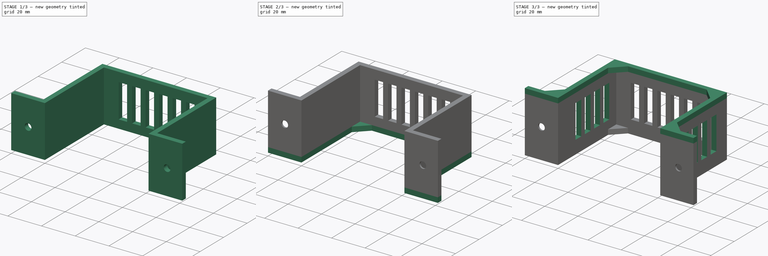
[diagram: build sequence overview — one tinted view per stage of 3, left to right]
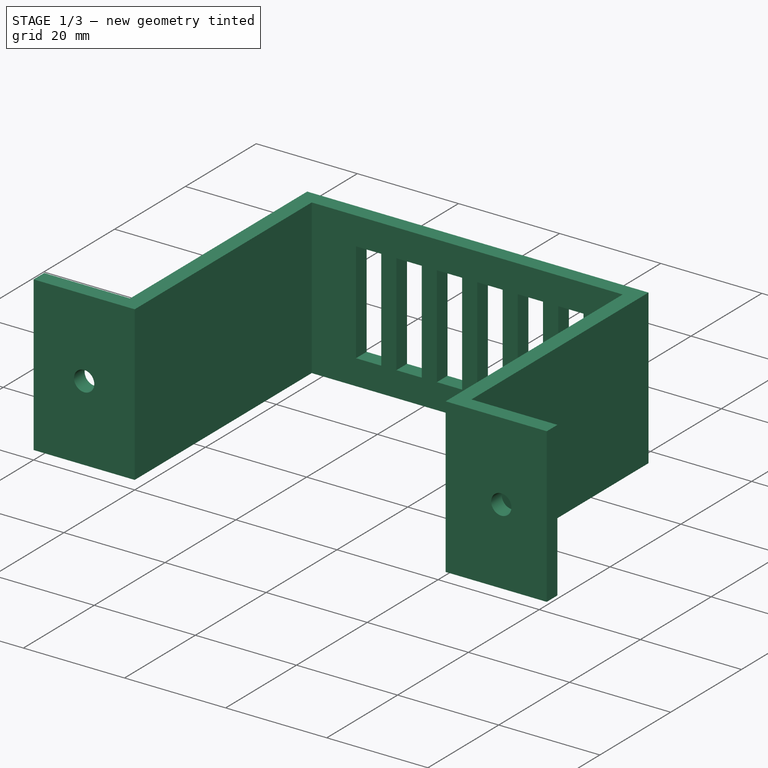
[diagram: stage 1 of 3 — iso view after this stage's code; geometry added in this stage tinted green]
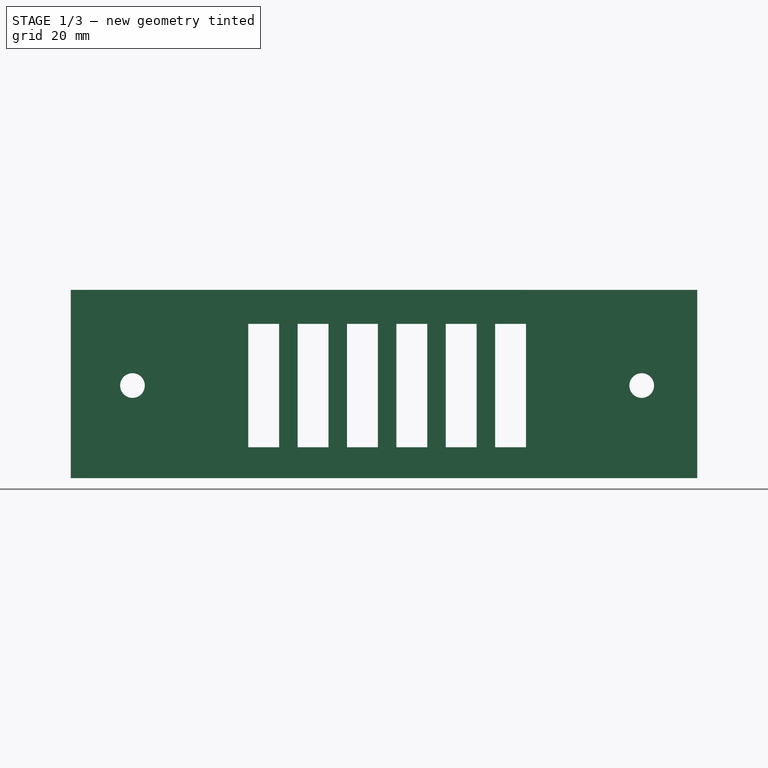
[diagram: stage 1 of 3 — front view after this stage's code; geometry added in this stage tinted green]
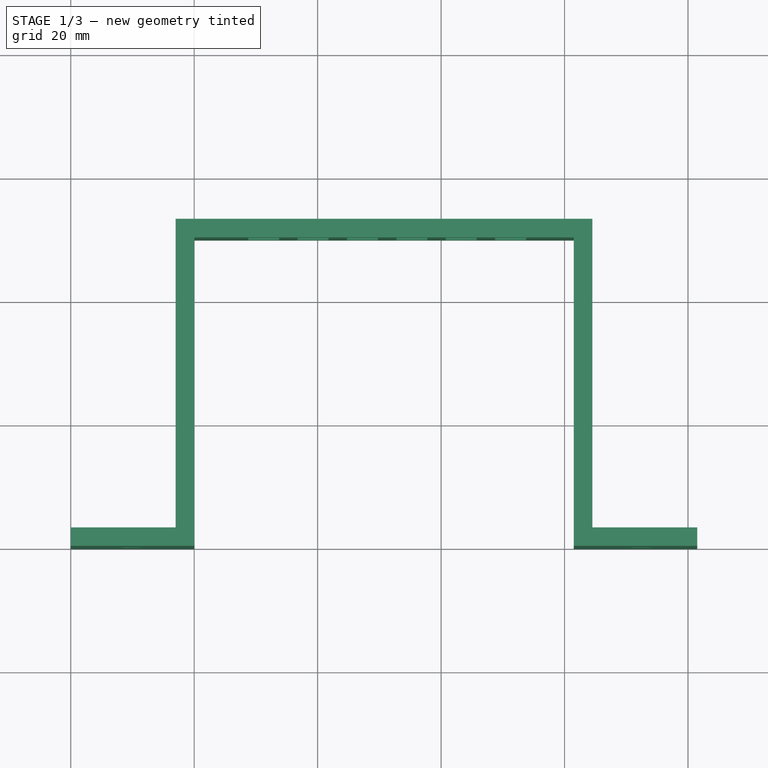
[diagram: stage 1 of 3 — top view after this stage's code; geometry added in this stage tinted green]
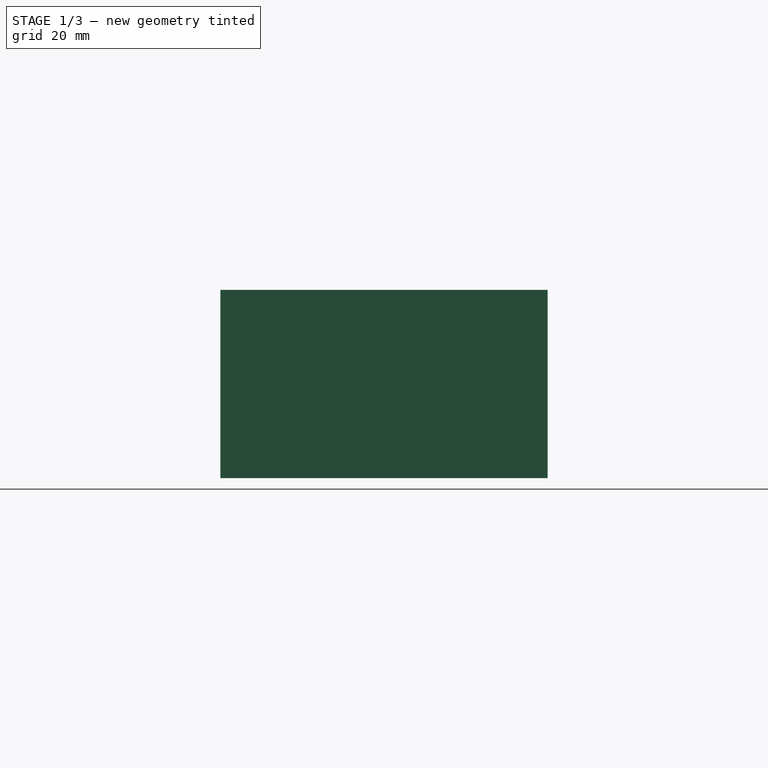
[diagram: stage 1 of 3 — right view after this stage's code; geometry added in this stage tinted green]
FCSTD DOCUMENT  (FreeCAD 1.0R39319 (Git))
Label: transfo_fixing
License: All rights reserved
LicenseURL: http://en.wikipedia.org/wiki/All_rights_reserved
objects: Sketcher::SketchObject×5, PartDesign::Pad×3, PartDesign::Pocket×2, PartDesign::Chamfer×1, PartDesign::Body×1
note: 29 computed .brp shape members not serialized (recipe doc carries the construction recipe); baked Part::Feature solids carry a one-line shape summary decoded from their .brp

FEATURE [Sketcher::SketchObject] Sketch
  ArcFitTolerance = 0
  AttachmentSupport = -> [XY_Plane]
  FullyConstrained = true
  MakeInternals = false
  MapMode = 5
  sketch-geometry (15):
    g0: LineSegment StartX=0 StartY=0 StartZ=0 EndX=20 EndY=0 EndZ=0
    g1: LineSegment StartX=20 StartY=0 StartZ=0 EndX=20 EndY=50 EndZ=0
    g2: LineSegment StartX=20 StartY=50 StartZ=0 EndX=81.5 EndY=50 EndZ=0
    g3: LineSegment StartX=81.5 StartY=50 StartZ=0 EndX=81.5 EndY=0 EndZ=0
    g4: LineSegment StartX=81.5 StartY=0 StartZ=0 EndX=101.5 EndY=0 EndZ=0
    g5: LineSegment StartX=101.5 StartY=0 StartZ=0 EndX=101.5 EndY=3 EndZ=0
    g6: LineSegment StartX=101.5 StartY=3 StartZ=0 EndX=84.5 EndY=3 EndZ=0
    g7: LineSegment StartX=84.5 StartY=3 StartZ=0 EndX=84.5 EndY=53 EndZ=0
    g8: LineSegment StartX=84.5 StartY=53 StartZ=0 EndX=17 EndY=53 EndZ=0
    g9: LineSegment StartX=17 StartY=53 StartZ=0 EndX=17 EndY=3 EndZ=0
    g10: LineSegment StartX=17 StartY=3 StartZ=0 EndX=0 EndY=3 EndZ=0
    g11: LineSegment StartX=0 StartY=3 StartZ=0 EndX=0 EndY=0 EndZ=0
    g12: LineSegment [constr] StartX=17 StartY=3 StartZ=0 EndX=17 EndY=0 EndZ=0
    g13: LineSegment [constr] StartX=17 StartY=3 StartZ=0 EndX=20 EndY=3 EndZ=0
    g14: LineSegment [constr] StartX=20 StartY=50 StartZ=0 EndX=20 EndY=53 EndZ=0
  constraints (44):
    c: Coincident(g-1,g0)
    c: Horizontal(g0)
    c: Coincident(g0,g1)
    c: Vertical(g1)
    c: Coincident(g1,g2)
    c: Horizontal(g2)
    c: Coincident(g2,g3)
    c: PointOnObject(g3,g-1)
    c: Vertical(g3)
    c: Coincident(g3,g4)
    c: Horizontal(g4)
    c: Coincident(g4,g5)
    c: Vertical(g5)
    c: Coincident(g5,g6)
    c: Horizontal(g6)
    c: Coincident(g6,g7)
    c: Vertical(g7)
    c: Coincident(g7,g8)
    c: Horizontal(g8)
    c: Coincident(g8,g9)
    c: Vertical(g9)
    c: Coincident(g9,g10)
    c: PointOnObject(g10,g-2)
    c: Horizontal(g10)
    c: Coincident(g10,g11)
    c: Coincident(g11,g0)
    c: DistanceX(g2,g2) = 61.5
    c: DistanceY(g1,g1) = 50
    c: DistanceX(g0,g0) = 20
    c: Equal(g0,g4)
    c: DistanceY(g11,g11) = 3
    c: Equal(g11,g5)
    c: Coincident(g12,g9)
    c: PointOnObject(g12,g0)
    c: Vertical(g12)
    c: Coincident(g13,g9)
    c: PointOnObject(g13,g1)
    c: Horizontal(g13)
    c: Equal(g11,g13)
    c: Equal(g10,g6)
    c: Coincident(g14,g1)
    c: PointOnObject(g14,g8)
    c: Vertical(g14)
    c: Equal(g14,g11)
FEATURE [PartDesign::Pad] Pad
  AllowMultiFace = false
  Direction = (0,0,1)
  Length = 30.5
  Length2 = 100
  Profile = -> Sketch
  Suppressed = false
  Type = 0
FEATURE [Sketcher::SketchObject] Sketch001
  ArcFitTolerance = 0
  AttachmentSupport = -> [Pad]
  FullyConstrained = true
  MakeInternals = false
  MapMode = 5
  Placement = pos=(0,0,0) rot=(1,0,0;1.5708rad)
  sketch-geometry (36):
    g0: Circle CenterX=10 CenterY=15 CenterZ=0 NormalX=0 NormalY=0 NormalZ=1 AngleXU=0 Radius=2
    g1: Circle CenterX=92.5 CenterY=15 CenterZ=0 NormalX=0 NormalY=0 NormalZ=1 AngleXU=0 Radius=2
    g2: LineSegment [constr] StartX=10 StartY=15 StartZ=0 EndX=92.5 EndY=15 EndZ=0
    g3: LineSegment StartX=28.75 StartY=25 StartZ=0 EndX=33.75 EndY=25 EndZ=0
    g4: LineSegment StartX=33.75 StartY=25 StartZ=0 EndX=33.75 EndY=5 EndZ=0
    g5: LineSegment StartX=33.75 StartY=5 StartZ=0 EndX=28.75 EndY=5 EndZ=0
    g6: LineSegment StartX=28.75 StartY=5 StartZ=0 EndX=28.75 EndY=25 EndZ=0
    g7: LineSegment StartX=73.75 StartY=25 StartZ=0 EndX=68.75 EndY=25 EndZ=0
    g8: LineSegment StartX=68.75 StartY=25 StartZ=0 EndX=68.75 EndY=5 EndZ=0
    g9: LineSegment StartX=68.75 StartY=5 StartZ=0 EndX=73.75 EndY=5 EndZ=0
    g10: LineSegment StartX=73.75 StartY=5 StartZ=0 EndX=73.75 EndY=25 EndZ=0
    g11: LineSegment StartX=65.75 StartY=5 StartZ=0 EndX=60.75 EndY=5 EndZ=0
    g12: LineSegment StartX=60.75 StartY=5 StartZ=0 EndX=60.75 EndY=25 EndZ=0
    g13: LineSegment StartX=60.75 StartY=25 StartZ=0 EndX=65.75 EndY=25 EndZ=0
    g14: LineSegment StartX=65.75 StartY=25 StartZ=0 EndX=65.75 EndY=5 EndZ=0
    g15: LineSegment StartX=36.75 StartY=5 StartZ=0 EndX=41.75 EndY=5 EndZ=0
    g16: LineSegment StartX=41.75 StartY=5 StartZ=0 EndX=41.75 EndY=25 EndZ=0
    g17: LineSegment StartX=41.75 StartY=25 StartZ=0 EndX=36.75 EndY=25 EndZ=0
    g18: LineSegment StartX=36.75 StartY=25 StartZ=0 EndX=36.75 EndY=5 EndZ=0
    g19: LineSegment StartX=44.75 StartY=25 StartZ=0 EndX=49.75 EndY=25 EndZ=0
    g20: LineSegment StartX=49.75 StartY=25 StartZ=0 EndX=49.75 EndY=5 EndZ=0
    g21: LineSegment StartX=49.75 StartY=5 StartZ=0 EndX=44.75 EndY=5 EndZ=0
    g22: LineSegment StartX=44.75 StartY=5 StartZ=0 EndX=44.75 EndY=25 EndZ=0
    g23: LineSegment StartX=52.75 StartY=25 StartZ=0 EndX=57.75 EndY=25 EndZ=0
    g24: LineSegment StartX=57.75 StartY=25 StartZ=0 EndX=57.75 EndY=5 EndZ=0
    g25: LineSegment StartX=57.75 StartY=5 StartZ=0 EndX=52.75 EndY=5 EndZ=0
    g26: LineSegment StartX=52.75 StartY=5 StartZ=0 EndX=52.75 EndY=25 EndZ=0
    g27: LineSegment [constr] StartX=33.75 StartY=5 StartZ=0 EndX=36.75 EndY=5 EndZ=0
    g28: LineSegment [constr] StartX=41.75 StartY=5 StartZ=0 EndX=44.75 EndY=5 EndZ=0
    g29: LineSegment [constr] StartX=49.75 StartY=5 StartZ=0 EndX=52.75 EndY=5 EndZ=0
    g30: LineSegment [constr] StartX=57.75 StartY=5 StartZ=0 EndX=60.75 EndY=5 EndZ=0
    g31: LineSegment [constr] StartX=65.75 StartY=5 StartZ=0 EndX=68.75 EndY=5 EndZ=0
    g32: LineSegment [constr] StartX=10 StartY=15 StartZ=0 EndX=28.75 EndY=15 EndZ=0
    g33: LineSegment [constr] StartX=92.5 StartY=15 StartZ=0 EndX=73.75 EndY=15 EndZ=0
    g34: LineSegment [constr] StartX=28.75 StartY=15 StartZ=0 EndX=28.75 EndY=5 EndZ=0
    g35: LineSegment [constr] StartX=28.75 StartY=15 StartZ=0 EndX=28.75 EndY=25 EndZ=0
  constraints (102):
    c: DistanceY(g-1,g0) = 15
    c: Coincident(g2,g0)
    c: Coincident(g2,g1)
    c: Horizontal(g2)
    c: Radius(g0) = 2
    c: Radius(g1) = 2
    c: DistanceX(g0,g1) = 82.5
    c: DistanceX(g-1,g0) = 10
    c: Coincident(g3,g4)
    c: Coincident(g4,g5)
    c: Coincident(g5,g6)
    c: Coincident(g6,g3)
    c: Horizontal(g3)
    c: Horizontal(g5)
    c: Vertical(g4)
    c: Vertical(g6)
    c: Coincident(g7,g8)
    c: Coincident(g8,g9)
    c: Coincident(g9,g10)
    c: Coincident(g10,g7)
    c: Horizontal(g7)
    c: Horizontal(g9)
    c: Vertical(g8)
    c: Vertical(g10)
    c: Coincident(g11,g12)
    c: Coincident(g12,g13)
    c: Coincident(g13,g14)
    c: Coincident(g14,g11)
    c: Horizontal(g11)
    c: Horizontal(g13)
    c: Vertical(g12)
    c: Vertical(g14)
    c: Coincident(g15,g16)
    c: Coincident(g16,g17)
    c: Coincident(g17,g18)
    c: Coincident(g18,g15)
    c: Horizontal(g15)
    c: Horizontal(g17)
    c: Vertical(g16)
    c: Vertical(g18)
    c: Coincident(g19,g20)
    c: Coincident(g20,g21)
    c: Coincident(g21,g22)
    c: Coincident(g22,g19)
    c: Horizontal(g19)
    c: Horizontal(g21)
    c: Vertical(g20)
    c: Vertical(g22)
    c: Equal(g5,g15)
    c: Equal(g15,g21)
    c: Equal(g21,g11)
    c: Equal(g11,g9)
    c: Equal(g6,g18)
    c: Equal(g18,g22)
    c: Equal(g22,g12)
    c: Equal(g12,g8)
    c: PointOnObject(g15,g5)
    c: PointOnObject(g21,g5)
    c: PointOnObject(g11,g5)
    c: PointOnObject(g8,g5)
    c: DistanceX(g5,g5) = 5
    c: Coincident(g23,g24)
    c: Coincident(g24,g25)
    c: Coincident(g25,g26)
    c: Coincident(g26,g23)
    c: Horizontal(g23)
    c: Horizontal(g25)
    c: Vertical(g24)
    c: Vertical(g26)
    c: Equal(g26,g20)
    c: Equal(g25,g11)
    c: PointOnObject(g25,g21)
    c: Coincident(g27,g4)
    c: Coincident(g27,g15)
    c: Coincident(g28,g15)
    c: Coincident(g28,g21)
    c: Coincident(g29,g20)
    c: Coincident(g29,g25)
    c: Coincident(g30,g24)
    c: Coincident(g30,g11)
    c: Coincident(g31,g11)
    c: Coincident(g31,g8)
    c: Equal(g31,g30)
    c: Equal(g30,g29)
    c: Equal(g29,g28)
    c: Equal(g28,g27)
    c: Coincident(g32,g0)
    c: PointOnObject(g32,g6)
    c: Coincident(g33,g1)
    c: PointOnObject(g33,g10)
    c: Equal(g32,g33)
    c: Horizontal(g33)
    c: Horizontal(g32)
    c: DistanceX(g27,g27) = 3
    c: PointOnObject(g34,g2)
    c: Vertical(g34)
    c: Coincident(g35,g34)
    c: PointOnObject(g35,g3)
    c: Vertical(g35)
    c: Equal(g34,g35)
    c: DistanceY(g6,g6) = 20
    c: Coincident(g34,g5)
FEATURE [PartDesign::Pocket] Pocket
  AllowMultiFace = false
  BaseFeature = -> Pad
  Direction = (0,1,-2e-16)
  Length = 3
  Length2 = 100
  Profile = -> Sketch001
  Suppressed = false
  Type = 1
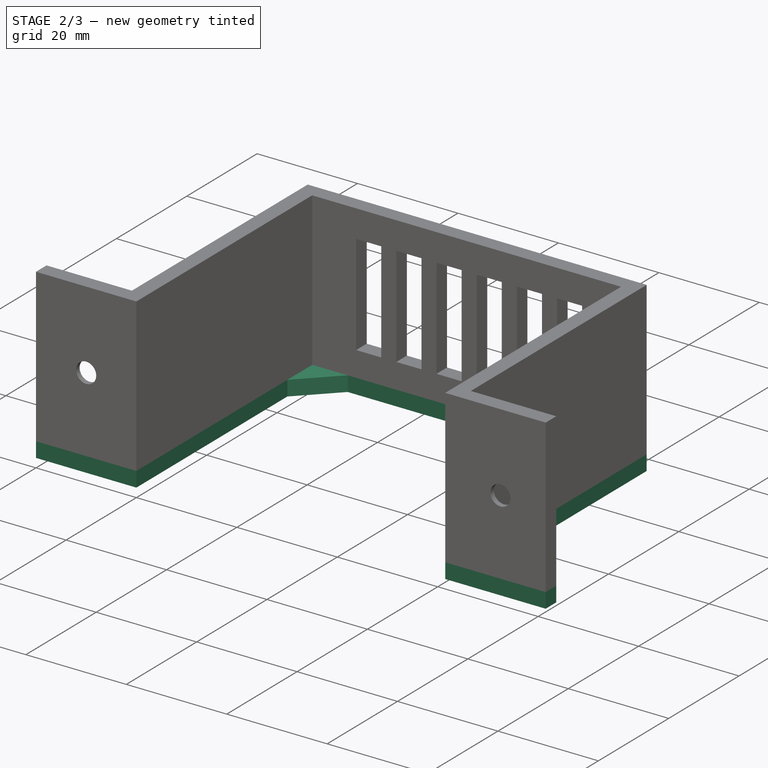
[diagram: stage 2 of 3 — iso view after this stage's code; geometry added in this stage tinted green]
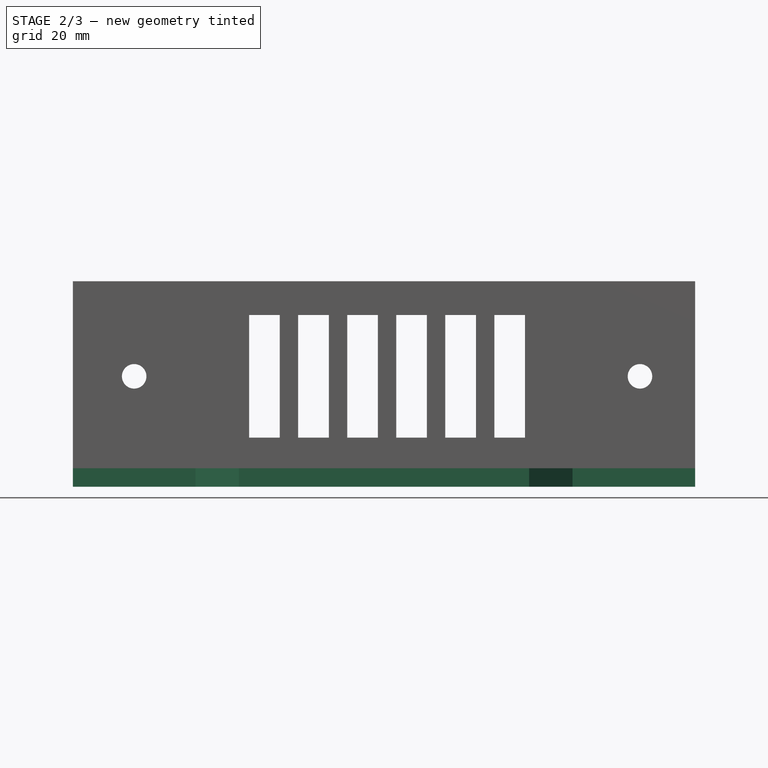
[diagram: stage 2 of 3 — front view after this stage's code; geometry added in this stage tinted green]
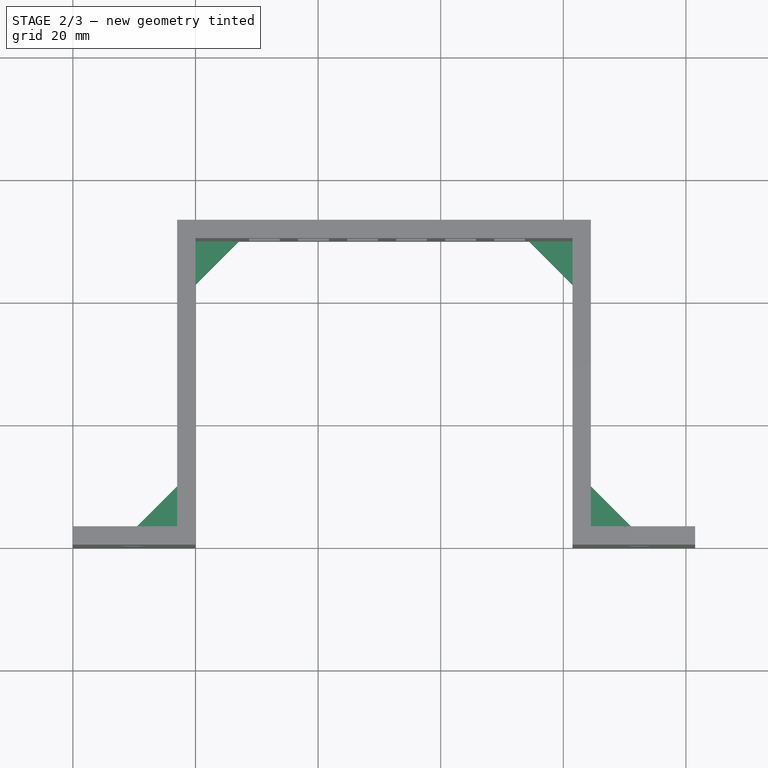
[diagram: stage 2 of 3 — top view after this stage's code; geometry added in this stage tinted green]
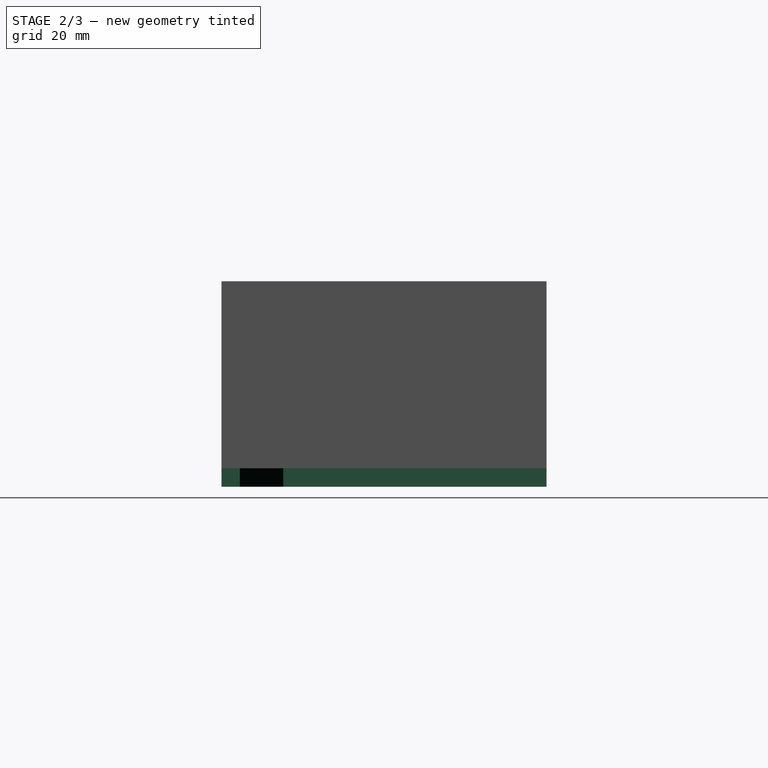
[diagram: stage 2 of 3 — right view after this stage's code; geometry added in this stage tinted green]
FEATURE [PartDesign::Chamfer] Chamfer
  Angle = 45
  Base = -> Pocket [Edge63,Edge31]
  BaseFeature = -> Pocket
  ChamferType = 0
  FlipDirection = false
  Refine = true
  Size = 2
  Size2 = 1
  SupportTransform = false
  Suppressed = false
  UseAllEdges = false
FEATURE [Sketcher::SketchObject] Sketch003
  ArcFitTolerance = 0
  AttachmentOffset = pos=(0,0,0) rot=(1,0,0;3.14159rad)
  AttachmentSupport = -> [Chamfer]
  FullyConstrained = true
  MakeInternals = false
  MapMode = 5
  sketch-geometry (19):
    g0: LineSegment StartX=0 StartY=0 StartZ=0 EndX=20 EndY=0 EndZ=0
    g1: LineSegment StartX=81.5 StartY=0 StartZ=0 EndX=101.5 EndY=0 EndZ=0
    g2: LineSegment StartX=101.5 StartY=0 StartZ=0 EndX=101.5 EndY=3 EndZ=0
    g3: LineSegment StartX=84.5 StartY=53 StartZ=0 EndX=17 EndY=53 EndZ=0
    g4: LineSegment StartX=0 StartY=3 StartZ=0 EndX=0 EndY=0 EndZ=0
    g5: LineSegment StartX=20 StartY=0 StartZ=0 EndX=20 EndY=42.9289 EndZ=0
    g6: LineSegment StartX=20 StartY=42.9289 StartZ=0 EndX=27.0711 EndY=50 EndZ=0
    g7: LineSegment StartX=27.0711 StartY=50 StartZ=0 EndX=74.4289 EndY=50 EndZ=0
    g8: LineSegment StartX=74.4289 StartY=50 StartZ=0 EndX=81.5 EndY=42.9289 EndZ=0
    g9: LineSegment StartX=81.5 StartY=42.9289 StartZ=0 EndX=81.5 EndY=0 EndZ=0
    g10: LineSegment StartX=84.5 StartY=53 StartZ=0 EndX=84.5 EndY=10.0711 EndZ=0
    g11: LineSegment StartX=84.5 StartY=10.0711 StartZ=0 EndX=91.5711 EndY=3 EndZ=0
    g12: LineSegment StartX=91.5711 StartY=3 StartZ=0 EndX=101.5 EndY=3 EndZ=0
    g13: LineSegment [constr] StartX=84.5 StartY=10.0711 StartZ=0 EndX=81.5 EndY=10.0711 EndZ=0
    g14: LineSegment StartX=0 StartY=3 StartZ=0 EndX=9.92893 EndY=3 EndZ=0
    g15: LineSegment StartX=9.92893 StartY=3 StartZ=0 EndX=17 EndY=10.0711 EndZ=0
    g16: LineSegment StartX=17 StartY=10.0711 StartZ=0 EndX=17 EndY=53 EndZ=0
    g17: LineSegment [constr] StartX=20 StartY=42.9289 StartZ=0 EndX=17 EndY=42.9289 EndZ=0
    g18: LineSegment [constr] StartX=27.0711 StartY=50 StartZ=0 EndX=27.0711 EndY=53 EndZ=0
  constraints (56):
    c: Coincident(g-1,g0)
    c: Horizontal(g0)
    c: PointOnObject(g1,g-1)
    c: Horizontal(g1)
    c: Coincident(g1,g2)
    c: Vertical(g2)
    c: Horizontal(g3)
    c: PointOnObject(g4,g-2)
    c: Coincident(g4,g0)
    c: DistanceX(g0,g0) = 20
    c: Equal(g0,g1)
    c: DistanceY(g4,g4) = 3
    c: Coincident(g5,g0)
    c: Vertical(g5)
    c: Coincident(g5,g6)
    c: Coincident(g6,g7)
    c: Horizontal(g7)
    c: Coincident(g7,g8)
    c: Coincident(g8,g9)
    c: Coincident(g9,g1)
    c: Vertical(g9)
    c: DistanceX(g5,g8) = 61.5
    c: Equal(g6,g8)
    c: Angle(g6,g7) = 2.35619
    c: Angle(g7,g8) = 2.35619
    c: DistanceY(g0,g6) = 50
    c: Distance(g6) = 10
    c: Coincident(g3,g10)
    c: Vertical(g10)
    c: Coincident(g10,g11)
    c: Coincident(g11,g12)
    c: Coincident(g12,g2)
    c: Horizontal(g12)
    c: Equal(g11,g8)
    c: Parallel(g11,g8)
    c: Coincident(g13,g10)
    c: PointOnObject(g13,g9)
    c: Horizontal(g13)
    c: Equal(g4,g13)
    c: Coincident(g14,g4)
    c: Horizontal(g14)
    c: Coincident(g14,g15)
    c: Coincident(g15,g16)
    c: Coincident(g16,g3)
    c: Vertical(g16)
    c: Equal(g15,g6)
    c: Parallel(g15,g6)
    c: Equal(g2,g4)
    c: Coincident(g17,g5)
    c: PointOnObject(g17,g16)
    c: Horizontal(g17)
    c: Coincident(g18,g6)
    c: PointOnObject(g18,g3)
    c: Vertical(g18)
    c: Equal(g18,g17)
    c: Equal(g17,g4)
FEATURE [PartDesign::Pad] Pad001
  AllowMultiFace = false
  BaseFeature = -> Chamfer
  Direction = (0,-2.068e-13,1)
  Length = 3
  Length2 = 100
  Profile = -> Sketch003
  Reversed = true
  Suppressed = false
  Type = 0
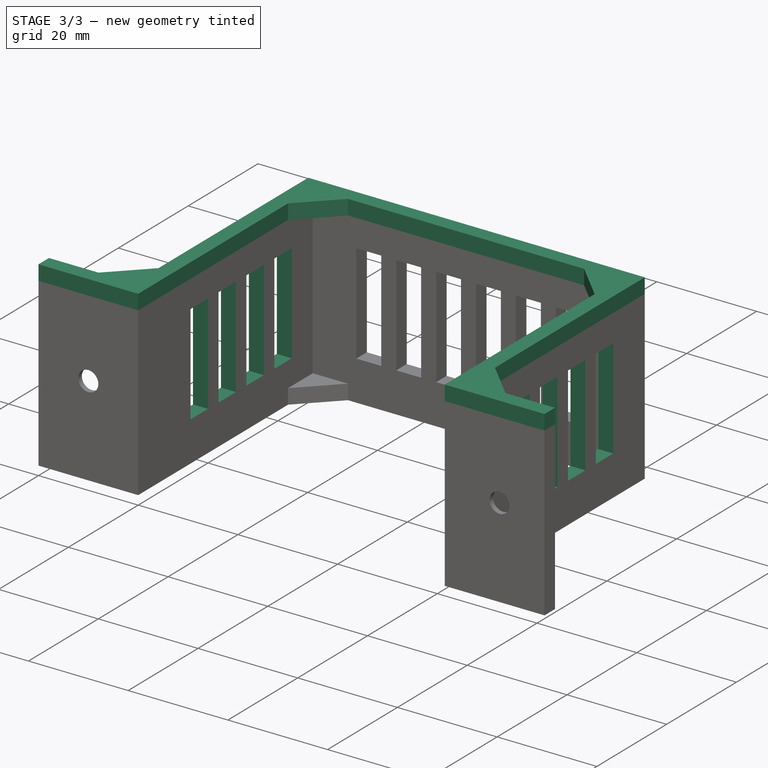
[diagram: stage 3 of 3 — iso view after this stage's code; geometry added in this stage tinted green]
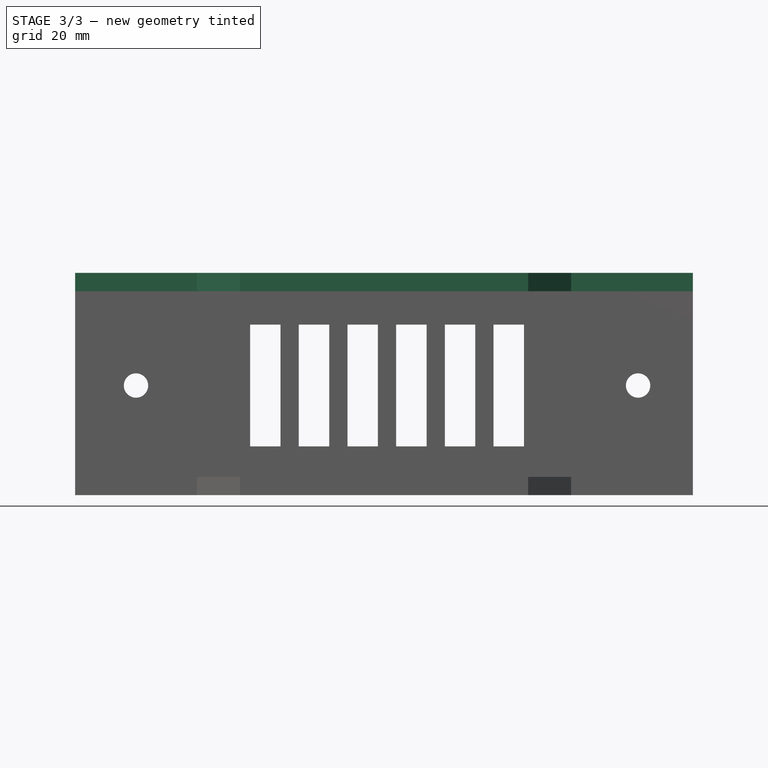
[diagram: stage 3 of 3 — front view after this stage's code; geometry added in this stage tinted green]
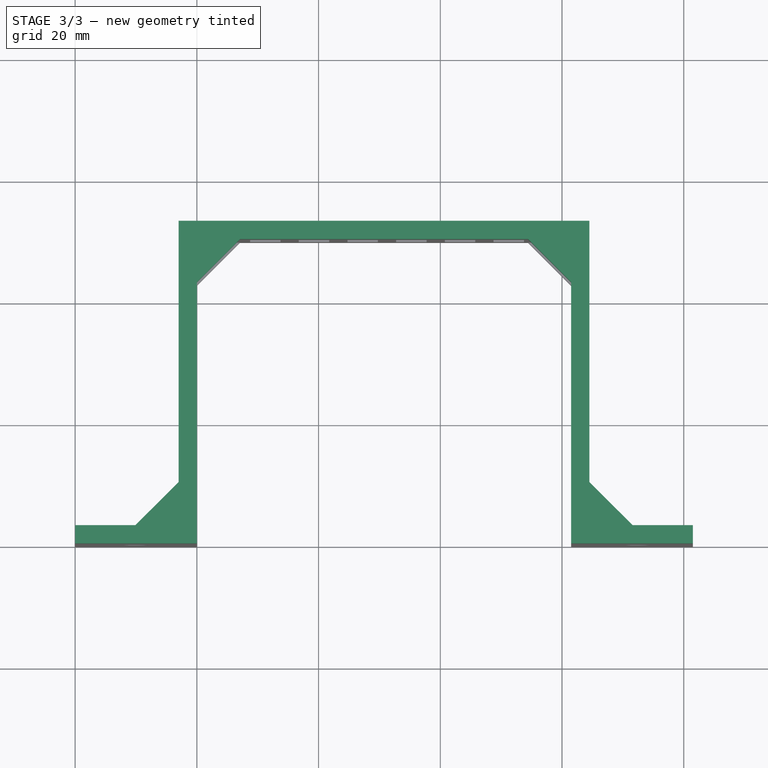
[diagram: stage 3 of 3 — top view after this stage's code; geometry added in this stage tinted green]
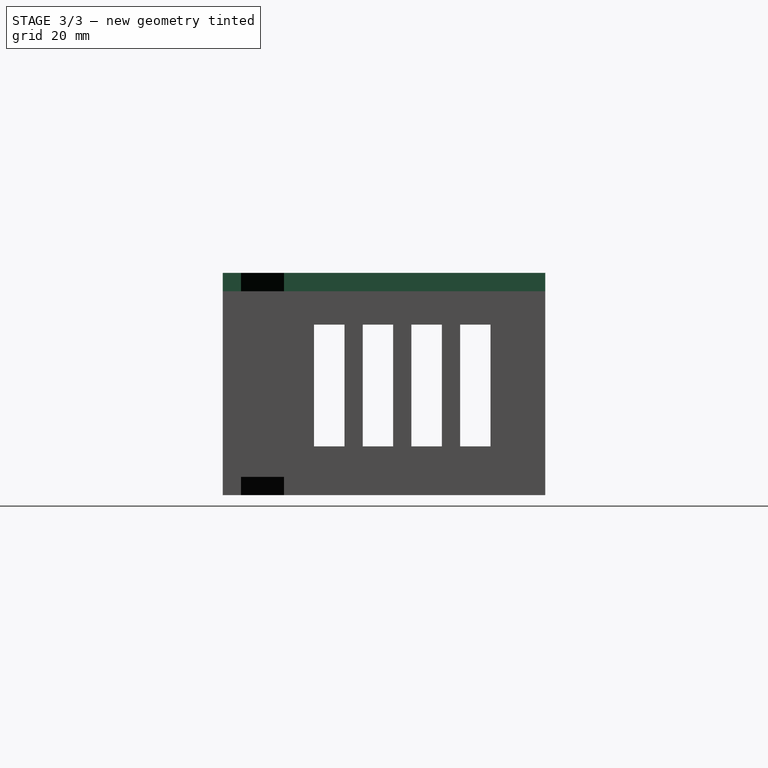
[diagram: stage 3 of 3 — right view after this stage's code; geometry added in this stage tinted green]
FEATURE [Sketcher::SketchObject] Sketch002
  ArcFitTolerance = 0
  AttachmentSupport = -> [Pad001]
  FullyConstrained = true
  MakeInternals = false
  MapMode = 5
  Placement = pos=(0,0,30.5) rot=(0,0,1;0rad)
  sketch-geometry (19):
    g0: LineSegment StartX=0 StartY=0 StartZ=0 EndX=20 EndY=0 EndZ=0
    g1: LineSegment StartX=81.5 StartY=0 StartZ=0 EndX=101.5 EndY=0 EndZ=0
    g2: LineSegment StartX=101.5 StartY=0 StartZ=0 EndX=101.5 EndY=3 EndZ=0
    g3: LineSegment StartX=84.5 StartY=53 StartZ=0 EndX=17 EndY=53 EndZ=0
    g4: LineSegment StartX=0 StartY=3 StartZ=0 EndX=0 EndY=0 EndZ=0
    g5: LineSegment StartX=20 StartY=0 StartZ=0 EndX=20 EndY=42.9289 EndZ=0
    g6: LineSegment StartX=20 StartY=42.9289 StartZ=0 EndX=27.0711 EndY=50 EndZ=0
    g7: LineSegment StartX=27.0711 StartY=50 StartZ=0 EndX=74.4289 EndY=50 EndZ=0
    g8: LineSegment StartX=74.4289 StartY=50 StartZ=0 EndX=81.5 EndY=42.9289 EndZ=0
    g9: LineSegment StartX=81.5 StartY=42.9289 StartZ=0 EndX=81.5 EndY=0 EndZ=0
    g10: LineSegment StartX=84.5 StartY=53 StartZ=0 EndX=84.5 EndY=10.0711 EndZ=0
    g11: LineSegment StartX=84.5 StartY=10.0711 StartZ=0 EndX=91.5711 EndY=3 EndZ=0
    g12: LineSegment StartX=91.5711 StartY=3 StartZ=0 EndX=101.5 EndY=3 EndZ=0
    g13: LineSegment [constr] StartX=84.5 StartY=10.0711 StartZ=0 EndX=81.5 EndY=10.0711 EndZ=0
    g14: LineSegment StartX=0 StartY=3 StartZ=0 EndX=9.92893 EndY=3 EndZ=0
    g15: LineSegment StartX=9.92893 StartY=3 StartZ=0 EndX=17 EndY=10.0711 EndZ=0
    g16: LineSegment StartX=17 StartY=10.0711 StartZ=0 EndX=17 EndY=53 EndZ=0
    g17: LineSegment [constr] StartX=20 StartY=42.9289 StartZ=0 EndX=17 EndY=42.9289 EndZ=0
    g18: LineSegment [constr] StartX=27.0711 StartY=50 StartZ=0 EndX=27.0711 EndY=53 EndZ=0
  constraints (56):
    c: Coincident(g-1,g0)
    c: Horizontal(g0)
    c: PointOnObject(g1,g-1)
    c: Horizontal(g1)
    c: Coincident(g1,g2)
    c: Vertical(g2)
    c: Horizontal(g3)
    c: PointOnObject(g4,g-2)
    c: Coincident(g4,g0)
    c: DistanceX(g0,g0) = 20
    c: Equal(g0,g1)
    c: DistanceY(g4,g4) = 3
    c: Coincident(g5,g0)
    c: Vertical(g5)
    c: Coincident(g5,g6)
    c: Coincident(g6,g7)
    c: Horizontal(g7)
    c: Coincident(g7,g8)
    c: Coincident(g8,g9)
    c: Coincident(g9,g1)
    c: Vertical(g9)
    c: DistanceX(g5,g8) = 61.5
    c: Equal(g6,g8)
    c: Angle(g6,g7) = 2.35619
    c: Angle(g7,g8) = 2.35619
    c: DistanceY(g0,g6) = 50
    c: Distance(g6) = 10
    c: Coincident(g3,g10)
    c: Vertical(g10)
    c: Coincident(g10,g11)
    c: Coincident(g11,g12)
    c: Coincident(g12,g2)
    c: Horizontal(g12)
    c: Equal(g11,g8)
    c: Parallel(g11,g8)
    c: Coincident(g13,g10)
    c: PointOnObject(g13,g9)
    c: Horizontal(g13)
    c: Equal(g4,g13)
    c: Coincident(g14,g4)
    c: Horizontal(g14)
    c: Coincident(g14,g15)
    c: Coincident(g15,g16)
    c: Coincident(g16,g3)
    c: Vertical(g16)
    c: Equal(g15,g6)
    c: Parallel(g15,g6)
    c: Equal(g2,g4)
    c: Coincident(g17,g5)
    c: PointOnObject(g17,g16)
    c: Horizontal(g17)
    c: Coincident(g18,g6)
    c: PointOnObject(g18,g3)
    c: Vertical(g18)
    c: Equal(g18,g17)
    c: Equal(g17,g4)
FEATURE [PartDesign::Pad] Pad002
  AllowMultiFace = false
  BaseFeature = -> Pad001
  Direction = (0,0,1)
  Length = 3
  Length2 = 100
  Profile = -> Sketch002
  Suppressed = false
  Type = 0
FEATURE [Sketcher::SketchObject] Sketch004
  ArcFitTolerance = 0
  AttachmentSupport = -> [Pad002]
  FullyConstrained = true
  MakeInternals = false
  MapMode = 5
  Placement = pos=(84.5,0,0) rot=(0.57735,0.57735,0.57735;2.0944rad)
  sketch-geometry (19):
    g0: LineSegment StartX=15 StartY=25 StartZ=0 EndX=20 EndY=25 EndZ=0
    g1: LineSegment StartX=20 StartY=25 StartZ=0 EndX=20 EndY=5 EndZ=0
    g2: LineSegment StartX=20 StartY=5 StartZ=0 EndX=15 EndY=5 EndZ=0
    g3: LineSegment StartX=15 StartY=5 StartZ=0 EndX=15 EndY=25 EndZ=0
    g4: LineSegment StartX=28 StartY=5 StartZ=0 EndX=23 EndY=5 EndZ=0
    g5: LineSegment StartX=23 StartY=5 StartZ=0 EndX=23 EndY=25 EndZ=0
    g6: LineSegment StartX=23 StartY=25 StartZ=0 EndX=28 EndY=25 EndZ=0
    g7: LineSegment StartX=28 StartY=25 StartZ=0 EndX=28 EndY=5 EndZ=0
    g8: LineSegment StartX=31 StartY=25 StartZ=0 EndX=36 EndY=25 EndZ=0
    g9: LineSegment StartX=36 StartY=25 StartZ=0 EndX=36 EndY=5 EndZ=0
    g10: LineSegment StartX=36 StartY=5 StartZ=0 EndX=31 EndY=5 EndZ=0
    g11: LineSegment StartX=31 StartY=5 StartZ=0 EndX=31 EndY=25 EndZ=0
    g12: LineSegment [constr] StartX=20 StartY=5 StartZ=0 EndX=23 EndY=5 EndZ=0
    g13: LineSegment [constr] StartX=28 StartY=5 StartZ=0 EndX=31 EndY=5 EndZ=0
    g14: LineSegment StartX=39 StartY=5 StartZ=0 EndX=44 EndY=5 EndZ=0
    g15: LineSegment StartX=44 StartY=5 StartZ=0 EndX=44 EndY=25 EndZ=0
    g16: LineSegment StartX=44 StartY=25 StartZ=0 EndX=39 EndY=25 EndZ=0
    g17: LineSegment StartX=39 StartY=25 StartZ=0 EndX=39 EndY=5 EndZ=0
    g18: LineSegment [constr] StartX=36 StartY=5 StartZ=0 EndX=39 EndY=5 EndZ=0
  constraints (54):
    c: Coincident(g0,g1)
    c: Coincident(g1,g2)
    c: Coincident(g2,g3)
    c: Coincident(g3,g0)
    c: Horizontal(g0)
    c: Horizontal(g2)
    c: Vertical(g1)
    c: Vertical(g3)
    c: Coincident(g4,g5)
    c: Coincident(g5,g6)
    c: Coincident(g6,g7)
    c: Coincident(g7,g4)
    c: Horizontal(g4)
    c: Horizontal(g6)
    c: Vertical(g5)
    c: Vertical(g7)
    c: Coincident(g8,g9)
    c: Coincident(g9,g10)
    c: Coincident(g10,g11)
    c: Coincident(g11,g8)
    c: Horizontal(g8)
    c: Horizontal(g10)
    c: Vertical(g9)
    c: Vertical(g11)
    c: Equal(g2,g4)
    c: Equal(g4,g10)
    c: Equal(g11,g5)
    c: Equal(g5,g3)
    c: PointOnObject(g4,g2)
    c: PointOnObject(g10,g2)
    c: DistanceX(g2,g2) = 5
    c: Coincident(g12,g1)
    c: Coincident(g12,g4)
    c: Coincident(g13,g4)
    c: Coincident(g13,g10)
    c: Equal(g12,g13)
    c: DistanceX(g12,g12) = 3
    c: DistanceY(g3,g3) = 20
    c: DistanceY(g-1,g2) = 5
    c: DistanceX(g-1,g2) = 15
    c: Coincident(g14,g15)
    c: Coincident(g15,g16)
    c: Coincident(g16,g17)
    c: Coincident(g17,g14)
    c: Horizontal(g14)
    c: Horizontal(g16)
    c: Vertical(g15)
    c: Vertical(g17)
    c: Equal(g17,g9)
    c: Equal(g14,g10)
    c: PointOnObject(g14,g10)
    c: Coincident(g18,g9)
    c: Coincident(g18,g14)
    c: Equal(g18,g13)
FEATURE [PartDesign::Pocket] Pocket001
  AllowMultiFace = false
  BaseFeature = -> Pad002
  Direction = (-1,0,0)
  Length = 5
  Length2 = 100
  Profile = -> Sketch004
  Suppressed = false
  Type = 1
FEATURE [PartDesign::Body] Body
  AllowCompound = false
  Group = -> [Sketch,Pad,Sketch001,Pocket,Sketch002,Sketch003,Chamfer,Pad001,Pad002,Sketch004,Pocket001]
  Origin = -> Origin
  Tip = -> Pocket001
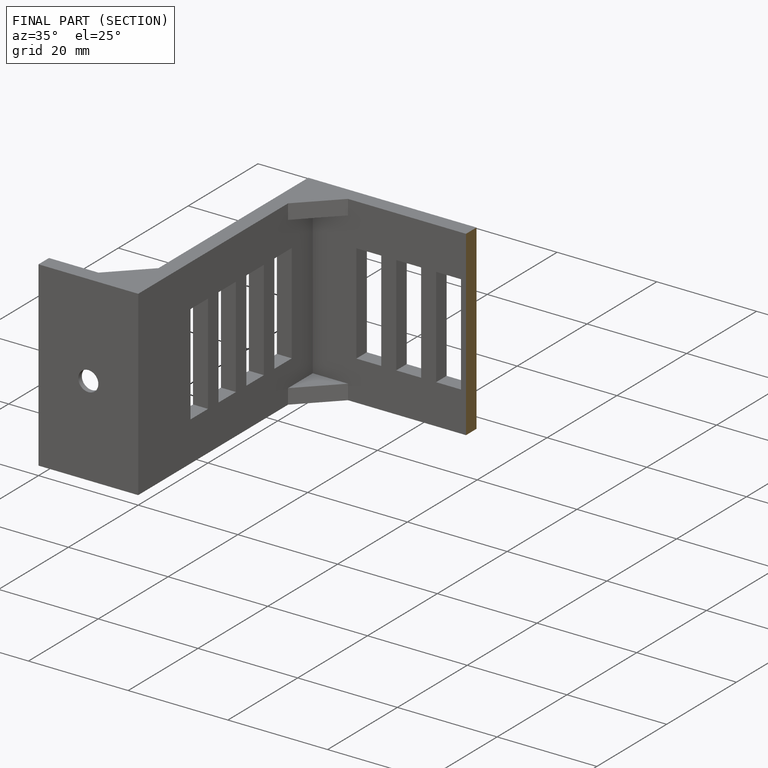
[diagram: finished part — half-section view (interior)]
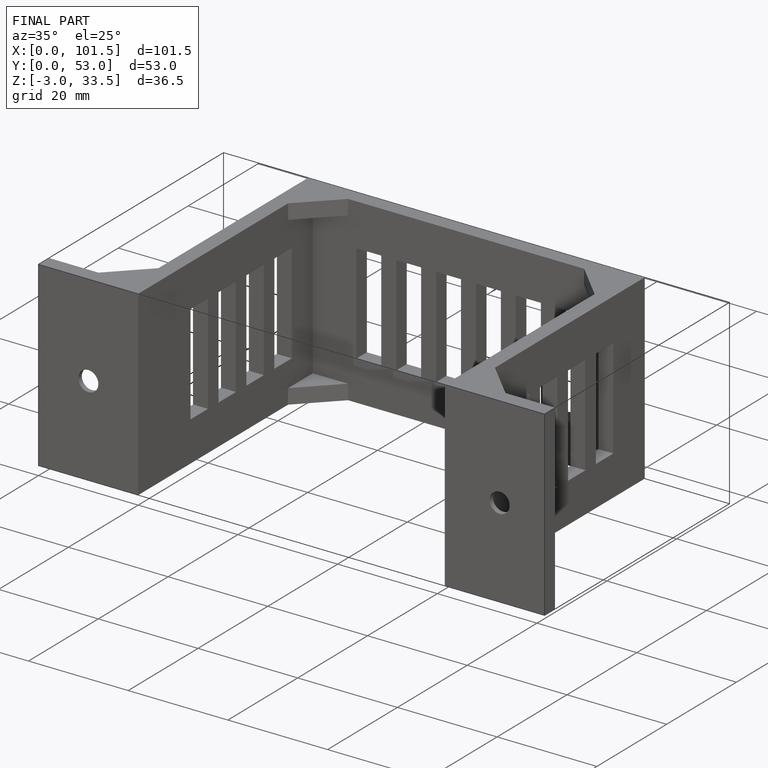
[diagram: finished part — iso view with bounding-box wireframe]
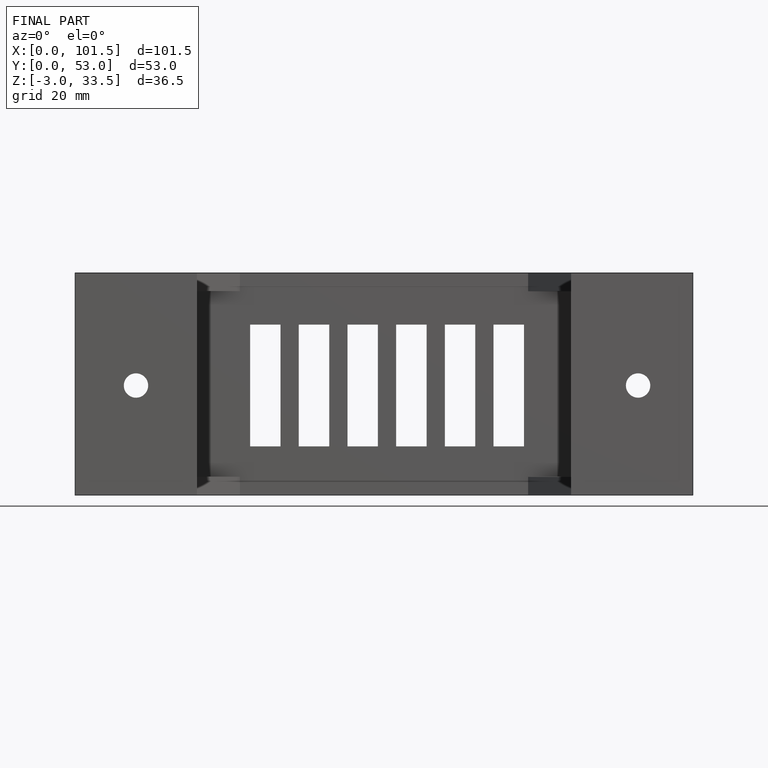
[diagram: finished part — front view with bounding-box wireframe]
